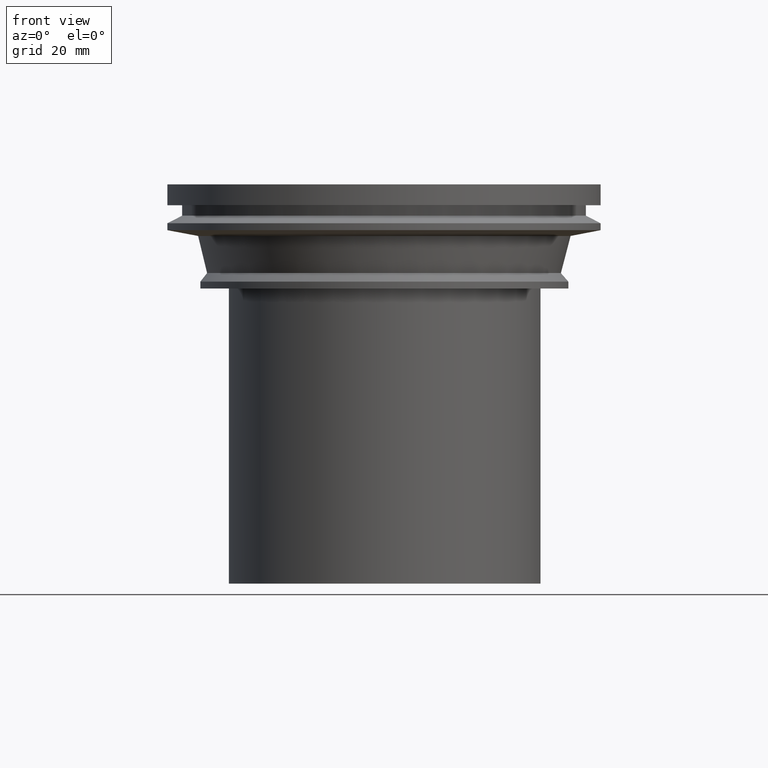
[diagram: clean part render]
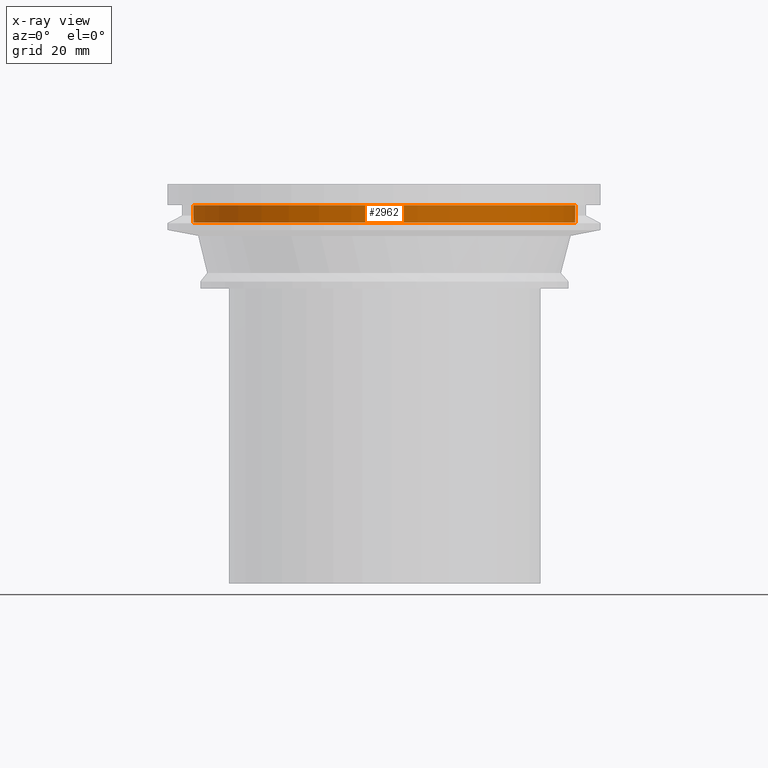
[diagram: x-ray — body ghosted, one internal face saturated and labeled with its STEP entity id]
A machine part, front view, then the same camera in x-ray: the body is ghosted and one INTERNAL B-rep face — a face not visible from any outside direction — is saturated and labeled: STEP entity #2962.
In plain terms, the highlighted cylindrical surface (bore or boss wall) has radius 55 mm, axis along (0, 0, -1).
Its self-contained STEP definition (entity closure, byte-faithful):
#560=CYLINDRICAL_SURFACE('',#3229,55.);
#947=ORIENTED_EDGE('',*,*,#1764,.F.);
#948=ORIENTED_EDGE('',*,*,#1765,.T.);
#1764=EDGE_CURVE('',#2148,#2148,#2307,.T.);
#1765=EDGE_CURVE('',#2149,#2149,#2308,.T.);
#2148=VERTEX_POINT('',#5102);
#2149=VERTEX_POINT('',#5104);
#2307=CIRCLE('',#3230,55.);
#2308=CIRCLE('',#3231,55.);
#2463=EDGE_LOOP('',(#947));
#2464=EDGE_LOOP('',(#948));
#2691=FACE_BOUND('',#2463,.T.);
#2692=FACE_BOUND('',#2464,.T.);
#2962=ADVANCED_FACE('',(#2691,#2692),#560,.T.);
#3229=AXIS2_PLACEMENT_3D('',#5100,#3846,#3847);
#3230=AXIS2_PLACEMENT_3D('',#5101,#3848,#3849);
#3231=AXIS2_PLACEMENT_3D('',#5103,#3850,#3851);
#3846=DIRECTION('',(0.,0.,-1.));
#3847=DIRECTION('',(-1.,0.,0.));
#3848=DIRECTION('',(0.,0.,1.));
#3849=DIRECTION('',(1.,0.,0.));
#3850=DIRECTION('',(0.,0.,1.));
#3851=DIRECTION('',(1.,0.,0.));
#5100=CARTESIAN_POINT('',(0.,0.,5.));
#5101=CARTESIAN_POINT('',(0.,0.,5.));
#5102=CARTESIAN_POINT('',(55.,0.,5.));
#5103=CARTESIAN_POINT('',(0.,0.,0.));
#5104=CARTESIAN_POINT('',(55.,0.,0.));